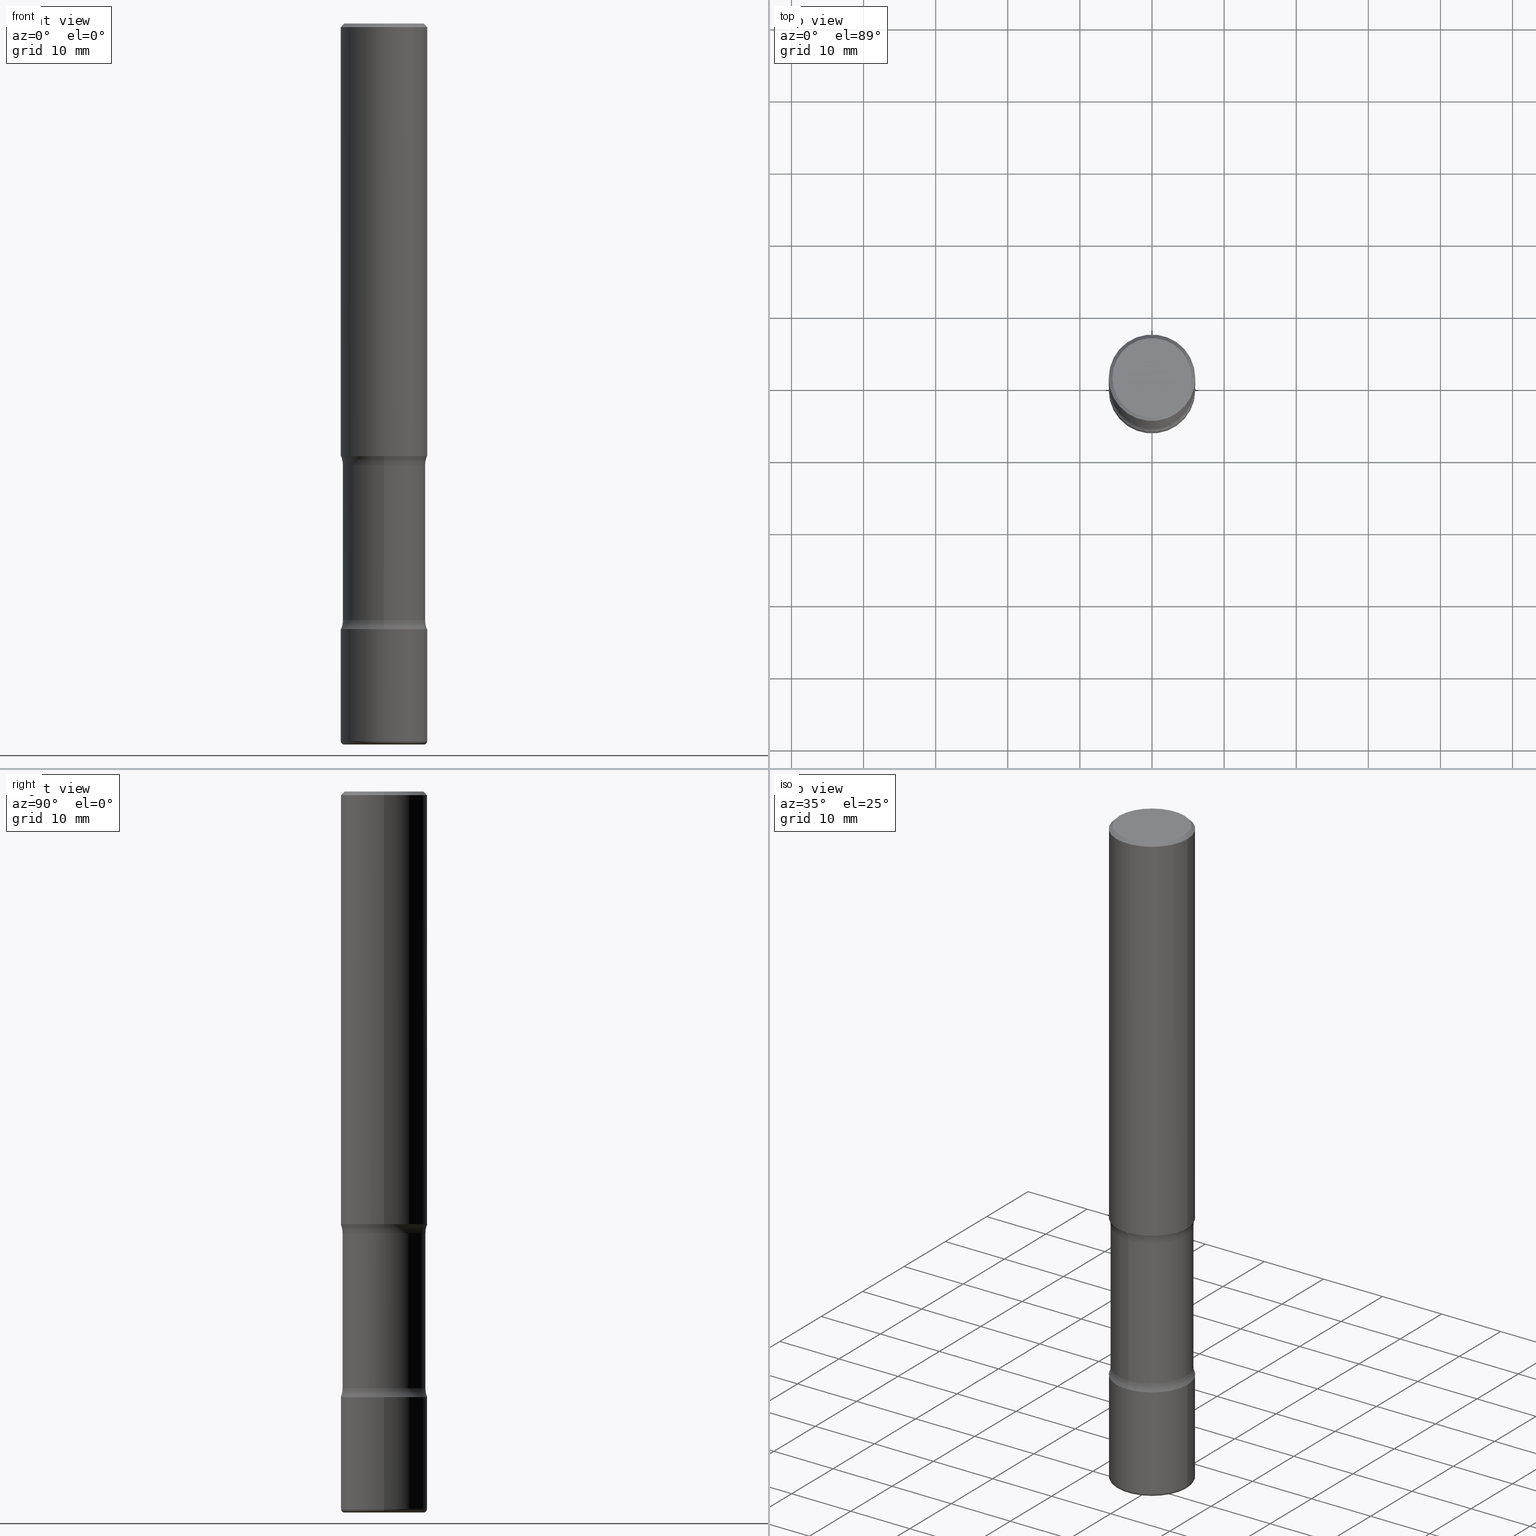
[diagram: canonical four-view strip — front | top / right | iso, engineering-drawing reading convention]
A machine part, canonical four-view strip (front | top / right | iso — engineering-drawing reading convention). The complete STEP part file that produces these views, byte-faithful:
ISO-10303-21;
HEADER;
FILE_DESCRIPTION (( 'STEP AP203' ),
    '1' );
FILE_NAME ('44781.STEP',
    '2024-03-02T03:12:13',
    ( '' ),
    ( '' ),
    'SwSTEP 2.0',
    'SolidWorks 2023',
    '' );
FILE_SCHEMA (( 'CONFIG_CONTROL_DESIGN' ));
ENDSEC;

DATA;
#1 = DIRECTION ( 'NONE',  ( 1.000000000000000000, -6.860497997771530774E-15, 4.843041298412109915E-29 ) ) ;
#2 = PERSON_AND_ORGANIZATION_ROLE ( 'creator' ) ;
#3 = CARTESIAN_POINT ( 'NONE',  ( 5.802532570468079339E-29, -8.557251244023685762E-15, -2.411772547846565917 ) ) ;
#4 = ORIENTED_EDGE ( 'NONE', *, *, #492, .F. ) ;
#5 = AXIS2_PLACEMENT_3D ( 'NONE', #450, #323, #62 ) ;
#6 = AXIS2_PLACEMENT_3D ( 'NONE', #130, #473, #86 ) ;
#7 = CARTESIAN_POINT ( 'NONE',  ( 8.087409888934865187E-29, -1.154667793568816723E-14, -3.307100000000000151 ) ) ;
#8 = CALENDAR_DATE ( 2024, 1, 3 ) ;
#9 = FACE_OUTER_BOUND ( 'NONE', #176, .T. ) ;
#10 = ORIENTED_EDGE ( 'NONE', *, *, #239, .T. ) ;
#11 = VERTEX_POINT ( 'NONE', #276 ) ;
#12 = DATE_AND_TIME ( #393, #21 ) ;
#13 = TOROIDAL_SURFACE ( 'NONE', #394, 0.3509500000000000397, 0.1250000000000000278 ) ;
#14 = DIRECTION ( 'NONE',  ( 1.000000000000000000, -6.982962677686266711E-15, 0.000000000000000000 ) ) ;
#15 = CIRCLE ( 'NONE', #419, 0.1250000000000000278 ) ;
#16 = DIRECTION ( 'NONE',  ( -1.000000000000000000, 6.982962677686265922E-15, -4.876176775795935793E-29 ) ) ;
#17 = EDGE_CURVE ( 'NONE', #286, #116, #375, .T. ) ;
#18 = CC_DESIGN_DATE_AND_TIME_ASSIGNMENT ( #49, #434, ( #352 ) ) ;
#19 = CARTESIAN_POINT ( 'NONE',  ( 9.579634954469036932E-29, -1.367717984865025539E-14, -3.917300000000000448 ) ) ;
#20 = AXIS2_PLACEMENT_3D ( 'NONE', #552, #294, #290 ) ;
#21 = LOCAL_TIME ( 22, 12, 13.00000000000000000, #168 ) ;
#22 = LINE ( 'NONE', #188, #184 ) ;
#23 = CARTESIAN_POINT ( 'NONE',  ( 1.577800417023309542E-15, 0.2259499999999864672, -3.937000000000000721 ) ) ;
#24 = CARTESIAN_POINT ( 'NONE',  ( -0.2362000000000001598, -2.480401480830709941E-15, -2.362200000000000077 ) ) ;
#25 = FACE_OUTER_BOUND ( 'NONE', #315, .T. ) ;
#26 = CARTESIAN_POINT ( 'NONE',  ( 7.959843264591818864E-29, -1.138267340980399904E-14, -3.257527452153434755 ) ) ;
#27 = DIRECTION ( 'NONE',  ( 1.000000000000000000, -6.982962677686266711E-15, 0.000000000000000000 ) ) ;
#28 = TOROIDAL_SURFACE ( 'NONE', #427, 0.2165000000000001645, 0.01969999999999987733 ) ;
#29 = ORIENTED_EDGE ( 'NONE', *, *, #500, .T. ) ;
#30 = PLANE ( 'NONE',  #325 ) ;
#31 = ORIENTED_EDGE ( 'NONE', *, *, #452, .F. ) ;
#32 = CARTESIAN_POINT ( 'NONE',  ( -0.2362000000000001598, 1.678301941865357775E-15, -1.161852468318209598E-29 ) ) ;
#33 = ORIENTED_EDGE ( 'NONE', *, *, #483, .T. ) ;
#34 = DIRECTION ( 'NONE',  ( -6.982962677686265133E-15, -1.000000000000000000, 0.000000000000000000 ) ) ;
#35 = EDGE_CURVE ( 'NONE', #413, #116, #279, .T. ) ;
#36 = VERTEX_POINT ( 'NONE', #24 ) ;
#37 = TOROIDAL_SURFACE ( 'NONE', #179, 0.3509500000000000952, 0.1250000000000000278 ) ;
#38 = LOCAL_TIME ( 22, 12, 13.00000000000000000, #525 ) ;
#39 = CARTESIAN_POINT ( 'NONE',  ( -0.2165000000000001645, -1.210325745744487227E-14, -3.937000000000000277 ) ) ;
#40 = ORIENTED_EDGE ( 'NONE', *, *, #470, .T. ) ;
#41 = CC_DESIGN_PERSON_AND_ORGANIZATION_ASSIGNMENT ( #306, #212, ( #432 ) ) ;
#42 = ORIENTED_EDGE ( 'NONE', *, *, #95, .F. ) ;
#43 = CALENDAR_DATE ( 2024, 1, 3 ) ;
#44 = DIRECTION ( 'NONE',  ( 2.573332013070723283E-29, -3.308373949061201717E-15, -1.000000000000000000 ) ) ;
#45 = ORIENTED_EDGE ( 'NONE', *, *, #442, .F. ) ;
#46 = AXIS2_PLACEMENT_3D ( 'NONE', #52, #44, #141 ) ;
#47 = APPROVAL_PERSON_ORGANIZATION ( #524, #319, #353 ) ;
#48 = ORIENTED_EDGE ( 'NONE', *, *, #444, .F. ) ;
#49 = DATE_AND_TIME ( #430, #69 ) ;
#50 = CARTESIAN_POINT ( 'NONE',  ( -0.2165000000000001645, -1.213885482572963751E-14, -3.917300000000000448 ) ) ;
#51 = ORIENTED_EDGE ( 'NONE', *, *, #533, .F. ) ;
#52 = CARTESIAN_POINT ( 'NONE',  ( 5.655868469784339415E-29, -8.420595391220237306E-15, -2.362200000000000077 ) ) ;
#53 = AXIS2_PLACEMENT_3D ( 'NONE', #232, #327, #99 ) ;
#54 = PLANE ( 'NONE',  #269 ) ;
#55 = LOCAL_TIME ( 22, 12, 13.00000000000000000, #531 ) ;
#56 = FACE_OUTER_BOUND ( 'NONE', #471, .T. ) ;
#57 = ADVANCED_FACE ( 'NONE', ( #59 ), #446, .F. ) ;
#58 = DIRECTION ( 'NONE',  ( 1.000000000000000000, -6.982962677686270655E-15, 4.883557194083114583E-29 ) ) ;
#59 = FACE_OUTER_BOUND ( 'NONE', #305, .T. ) ;
#60 = AXIS2_PLACEMENT_3D ( 'NONE', #50, #93, #391 ) ;
#61 = ADVANCED_FACE ( 'NONE', ( #401 ), #13, .F. ) ;
#62 = DIRECTION ( 'NONE',  ( -1.000000000000000000, 6.982962677686266711E-15, 0.000000000000000000 ) ) ;
#63 = CARTESIAN_POINT ( 'NONE',  ( -0.2161999999999998090, 1.544631344304200789E-15, 4.268512490089730842E-18 ) ) ;
#64 = DIRECTION ( 'NONE',  ( 1.000000000000000000, -6.982962677686266711E-15, 0.000000000000000000 ) ) ;
#65 = DESIGN_CONTEXT ( 'detailed design', #451, 'design' ) ;
#66 = AXIS2_PLACEMENT_3D ( 'NONE', #362, #448, #328 ) ;
#67 = CARTESIAN_POINT ( 'NONE',  ( 9.708351723968114409E-29, -1.363062268620181866E-14, -3.937000000000000277 ) ) ;
#68 = CIRCLE ( 'NONE', #46, 0.2362000000000003819 ) ;
#69 = LOCAL_TIME ( 22, 12, 13.00000000000000000, #310 ) ;
#70 = EDGE_LOOP ( 'NONE', ( #366, #10, #169, #227 ) ) ;
#71 = CARTESIAN_POINT ( 'NONE',  ( 2.450670751734054227E-15, 0.3509499999999916020, -2.411772547846566805 ) ) ;
#72 = PRODUCT_DEFINITION_SHAPE ( 'NONE', 'NONE',  #114 ) ;
#73 = ORIENTED_EDGE ( 'NONE', *, *, #158, .F. ) ;
#74 = ADVANCED_FACE ( 'NONE', ( #106 ), #491, .F. ) ;
#75 = DIRECTION ( 'NONE',  ( 2.573332013070722722E-29, -3.308373949061201717E-15, -1.000000000000000000 ) ) ;
#76 = DIRECTION ( 'NONE',  ( -2.445468806185136597E-29, 3.491481338843145583E-15, 1.000000000000000000 ) ) ;
#77 = EDGE_LOOP ( 'NONE', ( #410, #240, #150, #347 ) ) ;
#78 = CARTESIAN_POINT ( 'NONE',  ( -0.2362000000000002431, -1.093362695030385570E-14, -3.307100000000000151 ) ) ;
#79 = DIRECTION ( 'NONE',  ( 6.982962677686265133E-15, 1.000000000000000000, -2.313165108945182696E-15 ) ) ;
#80 = EDGE_LOOP ( 'NONE', ( #31, #259, #373, #333 ) ) ;
#81 = LINE ( 'NONE', #297, #88 ) ;
#82 = EDGE_CURVE ( 'NONE', #392, #512, #288, .T. ) ;
#83 = APPROVAL_STATUS ( 'not_yet_approved' ) ;
#84 = FACE_OUTER_BOUND ( 'NONE', #175, .T. ) ;
#85 = COORDINATED_UNIVERSAL_TIME_OFFSET ( 5, 0, .BEHIND. ) ;
#86 = DIRECTION ( 'NONE',  ( 6.982962677686265922E-15, 1.000000000000000000, -2.418099573944910042E-15 ) ) ;
#87 = AXIS2_PLACEMENT_3D ( 'NONE', #321, #490, #397 ) ;
#88 = VECTOR ( 'NONE', #251, 39.37007874015748143 ) ;
#89 = DIRECTION ( 'NONE',  ( 1.000000000000000000, -6.982962677686271444E-15, 0.000000000000000000 ) ) ;
#90 = ORIENTED_EDGE ( 'NONE', *, *, #142, .T. ) ;
#91 =( NAMED_UNIT ( * ) PLANE_ANGLE_UNIT ( ) SI_UNIT ( $, .RADIAN. ) );
#92 = CC_DESIGN_PERSON_AND_ORGANIZATION_ASSIGNMENT ( #424, #177, ( #263 ) ) ;
#93 = DIRECTION ( 'NONE',  ( 7.105427357601001859E-15, 1.000000000000000000, -3.491481338843145583E-15 ) ) ;
#94 = AXIS2_PLACEMENT_3D ( 'NONE', #26, #143, #117 ) ;
#95 = EDGE_CURVE ( 'NONE', #428, #413, #464, .T. ) ;
#96 = EDGE_LOOP ( 'NONE', ( #121, #163 ) ) ;
#97 = DIRECTION ( 'NONE',  ( 6.860497997771529985E-15, 1.000000000000000000, 0.000000000000000000 ) ) ;
#98 = ADVANCED_FACE ( 'NONE', ( #153 ), #229, .T. ) ;
#99 = DIRECTION ( 'NONE',  ( 6.982962677686265922E-15, 1.000000000000000000, -3.469747663417771480E-15 ) ) ;
#100 = DIRECTION ( 'NONE',  ( 6.982962677686265922E-15, 1.000000000000000000, -2.418099573944910042E-15 ) ) ;
#101 = CIRCLE ( 'NONE', #138, 0.2362000000000002153 ) ;
#102 = ORIENTED_EDGE ( 'NONE', *, *, #536, .T. ) ;
#103 = CALENDAR_DATE ( 2024, 1, 3 ) ;
#104 = MANIFOLD_SOLID_BREP ( 'Body-Move/Copy2[1]', #494 ) ;
#105 = CARTESIAN_POINT ( 'NONE',  ( 1.649375784469578172E-15, 0.2361999999999886135, -3.307100000000001039 ) ) ;
#106 = FACE_OUTER_BOUND ( 'NONE', #96, .T. ) ;
#107 = MANIFOLD_SOLID_BREP ( 'Body-Move/Copy2[4]', #526 ) ;
#108 = CYLINDRICAL_SURFACE ( 'NONE', #185, 0.2361999999999999933 ) ;
#109 = DIRECTION ( 'NONE',  ( 2.445468806185136597E-29, -3.491481338843145583E-15, -1.000000000000000000 ) ) ;
#110 = CARTESIAN_POINT ( 'NONE',  ( 1.577800417023291793E-15, 0.2259499999999886877, -3.257527452153435199 ) ) ;
#111 = ORIENTED_EDGE ( 'NONE', *, *, #462, .T. ) ;
#112 = DIRECTION ( 'NONE',  ( 1.000000000000000000, -6.982962677686266711E-15, 0.000000000000000000 ) ) ;
#113 = AXIS2_PLACEMENT_3D ( 'NONE', #67, #365, #100 ) ;
#114 = PRODUCT_DEFINITION ( 'UNKNOWN', '', #263, #65 ) ;
#115 = CIRCLE ( 'NONE', #496, 0.2161999999999998090 ) ;
#116 = VERTEX_POINT ( 'NONE', #284 ) ;
#117 = DIRECTION ( 'NONE',  ( 6.982962677686266711E-15, 1.000000000000000000, -2.418099573944910436E-15 ) ) ;
#118 = DIRECTION ( 'NONE',  ( 2.573332013070723283E-29, -3.308373949061201717E-15, -1.000000000000000000 ) ) ;
#119 = ORIENTED_EDGE ( 'NONE', *, *, #217, .F. ) ;
#120 = DIRECTION ( 'NONE',  ( -2.445468806185136597E-29, 3.491481338843145583E-15, 1.000000000000000000 ) ) ;
#121 = ORIENTED_EDGE ( 'NONE', *, *, #230, .T. ) ;
#122 = CARTESIAN_POINT ( 'NONE',  ( 0.2361999999999998545, -1.690279253850497785E-15, -0.02000000000000006981 ) ) ;
#123 = AXIS2_PLACEMENT_3D ( 'NONE', #282, #539, #236 ) ;
#124 = VERTEX_POINT ( 'NONE', #402 ) ;
#125 = CIRCLE ( 'NONE', #20, 0.2165000000000001645 ) ;
#126 =( NAMED_UNIT ( * ) SI_UNIT ( $, .STERADIAN. ) SOLID_ANGLE_UNIT ( ) );
#127 = CARTESIAN_POINT ( 'NONE',  ( -1.043851414335219820E-46, 1.490343170380447200E-32, 4.268512490100411279E-18 ) ) ;
#128 = ORIENTED_EDGE ( 'NONE', *, *, #82, .F. ) ;
#129 = DATE_TIME_ROLE ( 'creation_date' ) ;
#130 = CARTESIAN_POINT ( 'NONE',  ( 9.708351723968114409E-29, -1.363062268620181866E-14, -3.937000000000000277 ) ) ;
#131 = VERTEX_POINT ( 'NONE', #441 ) ;
#132 = PERSON_AND_ORGANIZATION_ROLE ( 'design_supplier' ) ;
#133 = PLANE ( 'NONE',  #386 ) ;
#134 = ORIENTED_EDGE ( 'NONE', *, *, #438, .T. ) ;
#135 = ADVANCED_FACE ( 'NONE', ( #25 ), #147, .T. ) ;
#136 = VECTOR ( 'NONE', #498, 39.37007874015748143 ) ;
#137 = DATE_AND_TIME ( #43, #38 ) ;
#138 = AXIS2_PLACEMENT_3D ( 'NONE', #449, #332, #167 ) ;
#139 = DIRECTION ( 'NONE',  ( 2.438088387897960049E-29, -3.491481338843145188E-15, -1.000000000000000000 ) ) ;
#140 = VERTEX_POINT ( 'NONE', #110 ) ;
#141 = DIRECTION ( 'NONE',  ( 6.982962677686265922E-15, 1.000000000000000000, -3.469747663417771480E-15 ) ) ;
#142 = EDGE_CURVE ( 'NONE', #420, #11, #317, .T. ) ;
#143 = DIRECTION ( 'NONE',  ( 2.573332013070723283E-29, -3.308373949061201717E-15, -1.000000000000000000 ) ) ;
#144 = CIRCLE ( 'NONE', #170, 0.2362000000000002153 ) ;
#145 = DIRECTION ( 'NONE',  ( -6.982962677686265133E-15, -1.000000000000000000, 0.000000000000000000 ) ) ;
#146 = CARTESIAN_POINT ( 'NONE',  ( 5.802532570468079339E-29, -8.557251244023685762E-15, -2.411772547846565917 ) ) ;
#147 = CYLINDRICAL_SURFACE ( 'NONE', #436, 0.2362000000000001598 ) ;
#148 = APPROVAL_ROLE ( '' ) ;
#149 = CARTESIAN_POINT ( 'NONE',  ( 0.2362000000000001598, -9.896953003084776152E-15, -2.362200000000000077 ) ) ;
#150 = ORIENTED_EDGE ( 'NONE', *, *, #174, .T. ) ;
#151 = AXIS2_PLACEMENT_3D ( 'NONE', #190, #155, #495 ) ;
#152 = AXIS2_PLACEMENT_3D ( 'NONE', #203, #120, #193 ) ;
#153 = FACE_OUTER_BOUND ( 'NONE', #80, .T. ) ;
#154 = LINE ( 'NONE', #32, #350 ) ;
#155 = DIRECTION ( 'NONE',  ( -2.445468806185136597E-29, 3.491481338843145583E-15, 1.000000000000000000 ) ) ;
#156 = VERTEX_POINT ( 'NONE', #63 ) ;
#157 = DIRECTION ( 'NONE',  ( -2.445468806185136597E-29, 3.491481338843145583E-15, 1.000000000000000000 ) ) ;
#158 = EDGE_CURVE ( 'NONE', #124, #11, #384, .T. ) ;
#159 = ORIENTED_EDGE ( 'NONE', *, *, #558, .T. ) ;
#160 = DIRECTION ( 'NONE',  ( -2.445468806185136597E-29, 3.491481338843145583E-15, 1.000000000000000000 ) ) ;
#161 = CARTESIAN_POINT ( 'NONE',  ( 8.087409888934865187E-29, -1.154667793568816723E-14, -3.307100000000000151 ) ) ;
#162 = AXIS2_PLACEMENT_3D ( 'NONE', #518, #421, #112 ) ;
#163 = ORIENTED_EDGE ( 'NONE', *, *, #492, .T. ) ;
#164 = LINE ( 'NONE', #338, #556 ) ;
#165 = ADVANCED_FACE ( 'NONE', ( #488 ), #195, .T. ) ;
#166 = VERTEX_POINT ( 'NONE', #244 ) ;
#167 = DIRECTION ( 'NONE',  ( 6.982962677686265133E-15, 1.000000000000000000, -2.313165108945182696E-15 ) ) ;
#168 = COORDINATED_UNIVERSAL_TIME_OFFSET ( 5, 0, .BEHIND. ) ;
#169 = ORIENTED_EDGE ( 'NONE', *, *, #158, .T. ) ;
#170 = AXIS2_PLACEMENT_3D ( 'NONE', #414, #241, #64 ) ;
#171 = CYLINDRICAL_SURFACE ( 'NONE', #6, 0.2259500000000000952 ) ;
#172 = APPROVAL_STATUS ( 'not_yet_approved' ) ;
#173 = CARTESIAN_POINT ( 'NONE',  ( 1.649375784469555295E-15, 0.2361999999999919719, -2.362200000000000966 ) ) ;
#174 = EDGE_CURVE ( 'NONE', #405, #140, #357, .T. ) ;
#175 = EDGE_LOOP ( 'NONE', ( #460, #513 ) ) ;
#176 = EDGE_LOOP ( 'NONE', ( #417, #379 ) ) ;
#177 = PERSON_AND_ORGANIZATION_ROLE ( 'creator' ) ;
#178 = ORIENTED_EDGE ( 'NONE', *, *, #281, .T. ) ;
#179 = AXIS2_PLACEMENT_3D ( 'NONE', #146, #186, #274 ) ;
#180 = DIRECTION ( 'NONE',  ( -1.000000000000000000, 6.982962677686265922E-15, -4.876176775795935793E-29 ) ) ;
#181 = EDGE_CURVE ( 'NONE', #433, #512, #22, .T. ) ;
#182 = DIRECTION ( 'NONE',  ( -2.445468806185136597E-29, 3.491481338843145583E-15, 1.000000000000000000 ) ) ;
#183 = DIRECTION ( 'NONE',  ( -1.000000000000000000, 6.982962677686265922E-15, -4.883557194083112901E-29 ) ) ;
#184 = VECTOR ( 'NONE', #537, 39.37007874015748143 ) ;
#185 = AXIS2_PLACEMENT_3D ( 'NONE', #458, #560, #370 ) ;
#186 = DIRECTION ( 'NONE',  ( 2.573332013070723283E-29, -3.308373949061201717E-15, -1.000000000000000000 ) ) ;
#187 = ADVANCED_FACE ( 'NONE', ( #521 ), #516, .F. ) ;
#188 = CARTESIAN_POINT ( 'NONE',  ( 0.2361999999999999933, -1.649375784469496131E-15, 1.151752954443000088E-29 ) ) ;
#189 = ADVANCED_FACE ( 'NONE', ( #437 ), #312, .T. ) ;
#190 = CARTESIAN_POINT ( 'NONE',  ( 4.890937612370289799E-31, -6.982962677686315028E-17, -0.02000000000000006981 ) ) ;
#191 = FACE_OUTER_BOUND ( 'NONE', #199, .T. ) ;
#192 = CARTESIAN_POINT ( 'NONE',  ( 0.000000000000000000, 0.000000000000000000, 0.000000000000000000 ) ) ;
#193 = DIRECTION ( 'NONE',  ( 1.000000000000000000, -6.982962677686266711E-15, 4.876176775795936353E-29 ) ) ;
#194 = CIRCLE ( 'NONE', #335, 0.2362000000000002153 ) ;
#195 = CYLINDRICAL_SURFACE ( 'NONE', #113, 0.2259500000000000952 ) ;
#196 = ORIENTED_EDGE ( 'NONE', *, *, #442, .T. ) ;
#197 = CC_DESIGN_DATE_AND_TIME_ASSIGNMENT ( #137, #129, ( #114 ) ) ;
#198 = DIRECTION ( 'NONE',  ( -2.445468806185136877E-29, 3.491481338843145188E-15, 1.000000000000000000 ) ) ;
#199 = EDGE_LOOP ( 'NONE', ( #119, #42, #40, #330 ) ) ;
#200 = DIRECTION ( 'NONE',  ( 6.982962677686265922E-15, 1.000000000000000000, -3.308373949061201717E-15 ) ) ;
#201 = DIRECTION ( 'NONE',  ( -1.000000000000000000, 6.982962677686266711E-15, 0.000000000000000000 ) ) ;
#202 = ORIENTED_EDGE ( 'NONE', *, *, #95, .T. ) ;
#203 = CARTESIAN_POINT ( 'NONE',  ( 0.000000000000000000, 0.000000000000000000, 0.000000000000000000 ) ) ;
#204 = CIRCLE ( 'NONE', #527, 0.2165000000000001645 ) ;
#205 = ORIENTED_EDGE ( 'NONE', *, *, #266, .T. ) ;
#206 = DIRECTION ( 'NONE',  ( 1.000000000000000000, -6.982962677686268288E-15, 0.000000000000000000 ) ) ;
#207 = ORIENTED_EDGE ( 'NONE', *, *, #174, .F. ) ;
#208 = MECHANICAL_CONTEXT ( 'NONE', #540, 'mechanical' ) ;
#209 = FACE_OUTER_BOUND ( 'NONE', #300, .T. ) ;
#210 = SECURITY_CLASSIFICATION_LEVEL ( 'unclassified' ) ;
#211 = AXIS2_PLACEMENT_3D ( 'NONE', #3, #510, #515 ) ;
#212 = PERSON_AND_ORGANIZATION_ROLE ( 'design_owner' ) ;
#213 = ORIENTED_EDGE ( 'NONE', *, *, #438, .F. ) ;
#214 = ORIENTED_EDGE ( 'NONE', *, *, #536, .F. ) ;
#215 = APPROVAL_DATE_TIME ( #482, #411 ) ;
#216 = DIRECTION ( 'NONE',  ( 1.000000000000000000, -6.982962677686266711E-15, 4.876217060660160159E-29 ) ) ;
#217 = EDGE_CURVE ( 'NONE', #413, #131, #477, .T. ) ;
#218 = ORIENTED_EDGE ( 'NONE', *, *, #452, .T. ) ;
#219 = PERSON_AND_ORGANIZATION ( #295, #508 ) ;
#220 = DIRECTION ( 'NONE',  ( 1.000000000000000000, -6.982962677686270655E-15, 4.883557194083114583E-29 ) ) ;
#221 = ADVANCED_FACE ( 'NONE', ( #209 ), #261, .F. ) ;
#222 = AXIS2_PLACEMENT_3D ( 'NONE', #339, #343, #79 ) ;
#223 = AXIS2_PLACEMENT_3D ( 'NONE', #388, #265, #267 ) ;
#224 = DIRECTION ( 'NONE',  ( 2.438088387897960049E-29, -3.491481338843145188E-15, -1.000000000000000000 ) ) ;
#225 = CARTESIAN_POINT ( 'NONE',  ( -0.2361999999999998545, 1.579546157692632044E-15, -0.02000000000000006981 ) ) ;
#226 = ADVANCED_FACE ( 'NONE', ( #549 ), #507, .F. ) ;
#227 = ORIENTED_EDGE ( 'NONE', *, *, #142, .F. ) ;
#228 = DIRECTION ( 'NONE',  ( -2.573332013070722722E-29, 3.308373949061201717E-15, 1.000000000000000000 ) ) ;
#229 = CONICAL_SURFACE ( 'NONE', #5, 0.2361999999999998545, 0.7853981633974479459 ) ;
#230 = EDGE_CURVE ( 'NONE', #405, #286, #314, .T. ) ;
#231 = CIRCLE ( 'NONE', #358, 0.2161999999999998090 ) ;
#232 = CARTESIAN_POINT ( 'NONE',  ( 5.655868469784339415E-29, -8.420595391220237306E-15, -2.362200000000000077 ) ) ;
#233 =( GEOMETRIC_REPRESENTATION_CONTEXT ( 3 ) GLOBAL_UNCERTAINTY_ASSIGNED_CONTEXT ( ( #435 ) ) GLOBAL_UNIT_ASSIGNED_CONTEXT ( ( #472, #91, #126 ) ) REPRESENTATION_CONTEXT ( 'NONE', 'WORKASPACE' ) );
#234 = CARTESIAN_POINT ( 'NONE',  ( 0.2165000000000001645, -1.518899126836933270E-14, -3.917300000000000448 ) ) ;
#235 = ADVANCED_BREP_SHAPE_REPRESENTATION ( '44781', ( #104, #497, #107, #223 ), #233 ) ;
#236 = DIRECTION ( 'NONE',  ( 6.982962677686265922E-15, 1.000000000000000000, -3.627149360917363879E-15 ) ) ;
#237 = DIRECTION ( 'NONE',  ( -2.445468806185136597E-29, 3.491481338843145583E-15, 1.000000000000000000 ) ) ;
#238 = DIRECTION ( 'NONE',  ( -6.982962677686266711E-15, -1.000000000000000000, 3.491481338843145583E-15 ) ) ;
#239 = EDGE_CURVE ( 'NONE', #247, #124, #125, .T. ) ;
#240 = ORIENTED_EDGE ( 'NONE', *, *, #230, .F. ) ;
#241 = DIRECTION ( 'NONE',  ( -2.445468806185136597E-29, 3.491481338843145583E-15, 1.000000000000000000 ) ) ;
#242 = AXIS2_PLACEMENT_3D ( 'NONE', #459, #76, #220 ) ;
#243 = CC_DESIGN_APPROVAL ( #252, ( #352 ) ) ;
#244 = CARTESIAN_POINT ( 'NONE',  ( 0.2161999999999998090, -1.586759460484350805E-15, 4.268512490111238857E-18 ) ) ;
#245 = EDGE_LOOP ( 'NONE', ( #454, #296 ) ) ;
#246 = DIRECTION ( 'NONE',  ( 1.000000000000000000, -6.982962677686266711E-15, 4.876176775795936353E-29 ) ) ;
#247 = VERTEX_POINT ( 'NONE', #39 ) ;
#248 = CARTESIAN_POINT ( 'NONE',  ( -1.043851414335219820E-46, 1.490343170380447200E-32, 4.268512490100411279E-18 ) ) ;
#249 = ADVANCED_FACE ( 'NONE', ( #408 ), #439, .T. ) ;
#250 = ORIENTED_EDGE ( 'NONE', *, *, #444, .T. ) ;
#251 = DIRECTION ( 'NONE',  ( -2.445468806185136877E-29, 3.491481338843145188E-15, 1.000000000000000000 ) ) ;
#252 = APPROVAL ( #277, 'UNSPECIFIED' ) ;
#253 = VECTOR ( 'NONE', #499, 39.37007874015748143 ) ;
#254 = EDGE_LOOP ( 'NONE', ( #381, #111, #331, #128 ) ) ;
#255 = ORIENTED_EDGE ( 'NONE', *, *, #324, .T. ) ;
#256 = DIRECTION ( 'NONE',  ( -2.445468806185136597E-29, 3.491481338843145583E-15, 1.000000000000000000 ) ) ;
#257 = APPROVAL_DATE_TIME ( #12, #319 ) ;
#258 = EDGE_CURVE ( 'NONE', #547, #313, #194, .T. ) ;
#259 = ORIENTED_EDGE ( 'NONE', *, *, #475, .F. ) ;
#260 = CARTESIAN_POINT ( 'NONE',  ( 9.627810689950883669E-29, -1.374596203102546341E-14, -3.937000000000000277 ) ) ;
#261 = TOROIDAL_SURFACE ( 'NONE', #211, 0.3509500000000000952, 0.1250000000000000278 ) ;
#262 = ORIENTED_EDGE ( 'NONE', *, *, #371, .T. ) ;
#263 = PRODUCT_DEFINITION_FORMATION_WITH_SPECIFIED_SOURCE ( 'ANY', '', #432, .NOT_KNOWN. ) ;
#264 = APPLICATION_PROTOCOL_DEFINITION ( 'international standard', 'config_control_design', 1994, #540 ) ;
#265 = DIRECTION ( 'NONE',  ( 0.000000000000000000, 0.000000000000000000, 1.000000000000000000 ) ) ;
#266 = EDGE_CURVE ( 'NONE', #131, #309, #68, .T. ) ;
#267 = DIRECTION ( 'NONE',  ( 1.000000000000000000, 0.000000000000000000, 0.000000000000000000 ) ) ;
#268 = CLOSED_SHELL ( 'NONE', ( #489, #189, #98, #187, #57, #523 ) ) ;
#269 = AXIS2_PLACEMENT_3D ( 'NONE', #260, #224, #180 ) ;
#270 = SHAPE_DEFINITION_REPRESENTATION ( #72, #235 ) ;
#271 = CARTESIAN_POINT ( 'NONE',  ( 1.577800417023270691E-15, 0.2259499999999915743, -2.411772547846566805 ) ) ;
#272 = DIRECTION ( 'NONE',  ( 6.982962677686265922E-15, 1.000000000000000000, -3.308373949061201717E-15 ) ) ;
#273 = ADVANCED_FACE ( 'NONE', ( #9 ), #54, .T. ) ;
#274 = DIRECTION ( 'NONE',  ( 6.982962677686265922E-15, 1.000000000000000000, -3.308373949061201717E-15 ) ) ;
#275 = ORIENTED_EDGE ( 'NONE', *, *, #181, .F. ) ;
#276 = CARTESIAN_POINT ( 'NONE',  ( 0.2362000000000001043, -1.532655563311975191E-14, -3.917300000000000448 ) ) ;
#277 = APPROVAL_STATUS ( 'not_yet_approved' ) ;
#278 = CIRCLE ( 'NONE', #60, 0.01969999999999989468 ) ;
#279 = LINE ( 'NONE', #322, #136 ) ;
#280 = DIRECTION ( 'NONE',  ( 2.573332013070723283E-29, -3.308373949061201717E-15, -1.000000000000000000 ) ) ;
#281 = EDGE_CURVE ( 'NONE', #166, #156, #231, .T. ) ;
#282 = CARTESIAN_POINT ( 'NONE',  ( 5.783435094127386859E-29, -8.584599917104405503E-15, -2.411772547846565917 ) ) ;
#283 = LINE ( 'NONE', #407, #455 ) ;
#284 = CARTESIAN_POINT ( 'NONE',  ( -1.585289574834976853E-15, -0.2259500000000114195, -3.257527452153434311 ) ) ;
#285 = EDGE_LOOP ( 'NONE', ( #463, #178 ) ) ;
#286 = VERTEX_POINT ( 'NONE', #469 ) ;
#287 = DIRECTION ( 'NONE',  ( 2.573332013070723283E-29, -3.308373949061201717E-15, -1.000000000000000000 ) ) ;
#288 = CIRCLE ( 'NONE', #151, 0.2361999999999998545 ) ;
#289 = AXIS2_PLACEMENT_3D ( 'NONE', #367, #157, #206 ) ;
#290 = DIRECTION ( 'NONE',  ( 1.000000000000000000, -6.982962677686271444E-15, 0.000000000000000000 ) ) ;
#291 = ADVANCED_FACE ( 'NONE', ( #84 ), #133, .F. ) ;
#292 = ORIENTED_EDGE ( 'NONE', *, *, #217, .T. ) ;
#293 = DIRECTION ( 'NONE',  ( -1.000000000000000000, 6.982962677686265922E-15, -4.883557194083112901E-29 ) ) ;
#294 = DIRECTION ( 'NONE',  ( -2.445468806185136597E-29, 3.491481338843145583E-15, 1.000000000000000000 ) ) ;
#295 = PERSON ( 'UNSPECIFIED', 'UNSPECIFIED', 'UNSPECIFIED', ('UNSPECIFIED'), ('UNSPECIFIED'), ('UNSPECIFIED') ) ;
#296 = ORIENTED_EDGE ( 'NONE', *, *, #266, .F. ) ;
#297 = CARTESIAN_POINT ( 'NONE',  ( 0.2362000000000001598, -1.649375784469497314E-15, 1.151752954443000929E-29 ) ) ;
#298 = ORIENTED_EDGE ( 'NONE', *, *, #17, .T. ) ;
#299 = CARTESIAN_POINT ( 'NONE',  ( 5.776686413970529753E-29, -8.247577218615279626E-15, -2.362200000000000077 ) ) ;
#300 = EDGE_LOOP ( 'NONE', ( #213, #292, #205, #337 ) ) ;
#301 = AXIS2_PLACEMENT_3D ( 'NONE', #546, #360, #443 ) ;
#302 = CARTESIAN_POINT ( 'NONE',  ( -2.407691772317861442E-15, -0.3509500000000086439, -2.411772547846564585 ) ) ;
#303 = VECTOR ( 'NONE', #538, 39.37007874015748143 ) ;
#304 = LOCAL_TIME ( 22, 12, 13.00000000000000000, #85 ) ;
#305 = EDGE_LOOP ( 'NONE', ( #214, #506 ) ) ;
#306 = PERSON_AND_ORGANIZATION ( #295, #508 ) ;
#307 = DIRECTION ( 'NONE',  ( -2.445468806185136597E-29, 3.491481338843145583E-15, 1.000000000000000000 ) ) ;
#308 = ADVANCED_FACE ( 'NONE', ( #354 ), #171, .T. ) ;
#309 = VERTEX_POINT ( 'NONE', #173 ) ;
#310 = COORDINATED_UNIVERSAL_TIME_OFFSET ( 5, 0, .BEHIND. ) ;
#311 = CARTESIAN_POINT ( 'NONE',  ( 0.2362000000000002153, -1.319605372015766534E-14, -3.307100000000000151 ) ) ;
#312 = CONICAL_SURFACE ( 'NONE', #363, 0.2361999999999998545, 0.7853981633974479459 ) ;
#313 = VERTEX_POINT ( 'NONE', #311 ) ;
#314 = CIRCLE ( 'NONE', #222, 0.2362000000000002153 ) ;
#315 = EDGE_LOOP ( 'NONE', ( #48, #90, #159, #480 ) ) ;
#316 = LENGTH_MEASURE_WITH_UNIT ( LENGTH_MEASURE( 0.02539999999999999897 ), #476 );
#317 = CIRCLE ( 'NONE', #66, 0.2362000000000001321 ) ;
#318 = CIRCLE ( 'NONE', #53, 0.2362000000000003819 ) ;
#319 = APPROVAL ( #172, 'UNSPECIFIED' ) ;
#320 = DIRECTION ( 'NONE',  ( 1.000000000000000000, -6.982962677686266711E-15, 4.876176775795936353E-29 ) ) ;
#321 = CARTESIAN_POINT ( 'NONE',  ( 9.579634954469036932E-29, -1.367717984865025539E-14, -3.917300000000000448 ) ) ;
#322 = CARTESIAN_POINT ( 'NONE',  ( -1.550129522596380948E-15, -0.2259500000000137232, -3.936999999999999389 ) ) ;
#323 = DIRECTION ( 'NONE',  ( 2.445468806185136597E-29, -3.491481338843145583E-15, -1.000000000000000000 ) ) ;
#324 = EDGE_CURVE ( 'NONE', #124, #247, #204, .T. ) ;
#325 = AXIS2_PLACEMENT_3D ( 'NONE', #299, #75, #200 ) ;
#326 = AXIS2_PLACEMENT_3D ( 'NONE', #445, #280, #403 ) ;
#327 = DIRECTION ( 'NONE',  ( 2.573332013070723283E-29, -3.308373949061201717E-15, -1.000000000000000000 ) ) ;
#328 = DIRECTION ( 'NONE',  ( 1.000000000000000000, -6.982962677686269077E-15, 0.000000000000000000 ) ) ;
#329 = CARTESIAN_POINT ( 'NONE',  ( -0.2361999999999999933, 1.678301941865356591E-15, -1.161852468318208757E-29 ) ) ;
#330 = ORIENTED_EDGE ( 'NONE', *, *, #389, .T. ) ;
#331 = ORIENTED_EDGE ( 'NONE', *, *, #181, .T. ) ;
#332 = DIRECTION ( 'NONE',  ( 2.573332013070723283E-29, -3.308373949061201717E-15, -1.000000000000000000 ) ) ;
#333 = ORIENTED_EDGE ( 'NONE', *, *, #82, .T. ) ;
#334 = CARTESIAN_POINT ( 'NONE',  ( 5.776686413970529753E-29, -8.247577218615279626E-15, -2.362200000000000077 ) ) ;
#335 = AXIS2_PLACEMENT_3D ( 'NONE', #161, #307, #14 ) ;
#336 = EDGE_CURVE ( 'NONE', #247, #420, #278, .T. ) ;
#337 = ORIENTED_EDGE ( 'NONE', *, *, #470, .F. ) ;
#338 = CARTESIAN_POINT ( 'NONE',  ( -0.2361999999999998545, 1.579546157692632044E-15, -0.02000000000000006981 ) ) ;
#339 = CARTESIAN_POINT ( 'NONE',  ( 8.087409888934865187E-29, -1.154667793568816723E-14, -3.307100000000000151 ) ) ;
#340 = EDGE_LOOP ( 'NONE', ( #348, #134, #342, #45 ) ) ;
#341 = FACE_OUTER_BOUND ( 'NONE', #517, .T. ) ;
#342 = ORIENTED_EDGE ( 'NONE', *, *, #431, .T. ) ;
#343 = DIRECTION ( 'NONE',  ( 2.573332013070723283E-29, -3.308373949061201717E-15, -1.000000000000000000 ) ) ;
#344 = APPROVAL_ROLE ( '' ) ;
#345 = CC_DESIGN_PERSON_AND_ORGANIZATION_ASSIGNMENT ( #349, #132, ( #263 ) ) ;
#346 = CIRCLE ( 'NONE', #94, 0.2259500000000000397 ) ;
#347 = ORIENTED_EDGE ( 'NONE', *, *, #533, .T. ) ;
#348 = ORIENTED_EDGE ( 'NONE', *, *, #35, .F. ) ;
#349 = PERSON_AND_ORGANIZATION ( #295, #508 ) ;
#350 = VECTOR ( 'NONE', #198, 39.37007874015748143 ) ;
#351 = EDGE_LOOP ( 'NONE', ( #4, #298, #196, #207 ) ) ;
#352 = SECURITY_CLASSIFICATION ( '', '', #210 ) ;
#353 = APPROVAL_ROLE ( '' ) ;
#354 = FACE_OUTER_BOUND ( 'NONE', #390, .T. ) ;
#355 = CC_DESIGN_PERSON_AND_ORGANIZATION_ASSIGNMENT ( #383, #425, ( #352 ) ) ;
#356 = CARTESIAN_POINT ( 'NONE',  ( -2.407691772317839748E-15, -0.3509500000000114750, -3.257527452153433867 ) ) ;
#357 = CIRCLE ( 'NONE', #426, 0.1250000000000000278 ) ;
#358 = AXIS2_PLACEMENT_3D ( 'NONE', #127, #182, #216 ) ;
#359 = DIRECTION ( 'NONE',  ( 1.000000000000000000, -6.860497997771530774E-15, 4.843041298412109915E-29 ) ) ;
#360 = DIRECTION ( 'NONE',  ( -2.438088387897960049E-29, 3.491481338843145188E-15, 1.000000000000000000 ) ) ;
#361 = ADVANCED_FACE ( 'NONE', ( #56 ), #28, .T. ) ;
#362 = CARTESIAN_POINT ( 'NONE',  ( 9.579634954469036932E-29, -1.367717984865025539E-14, -3.917300000000000448 ) ) ;
#363 = AXIS2_PLACEMENT_3D ( 'NONE', #422, #109, #201 ) ;
#364 = APPROVAL_PERSON_ORGANIZATION ( #522, #411, #344 ) ;
#365 = DIRECTION ( 'NONE',  ( 2.573332013070723283E-29, -3.308373949061201717E-15, -1.000000000000000000 ) ) ;
#366 = ORIENTED_EDGE ( 'NONE', *, *, #336, .F. ) ;
#367 = CARTESIAN_POINT ( 'NONE',  ( 5.776686413970529753E-29, -8.247577218615279626E-15, -2.362200000000000077 ) ) ;
#368 = ADVANCED_FACE ( 'NONE', ( #191 ), #37, .F. ) ;
#369 = ORIENTED_EDGE ( 'NONE', *, *, #500, .F. ) ;
#370 = DIRECTION ( 'NONE',  ( 1.000000000000000000, -6.982962677686266711E-15, 4.876176775795936353E-29 ) ) ;
#371 = EDGE_CURVE ( 'NONE', #11, #420, #519, .T. ) ;
#372 = CARTESIAN_POINT ( 'NONE',  ( 7.966181769532969380E-29, -1.137359630996297475E-14, -3.257527452153434755 ) ) ;
#373 = ORIENTED_EDGE ( 'NONE', *, *, #544, .T. ) ;
#374 = LINE ( 'NONE', #329, #253 ) ;
#375 = CIRCLE ( 'NONE', #485, 0.1250000000000000278 ) ;
#376 = AXIS2_PLACEMENT_3D ( 'NONE', #504, #256, #246 ) ;
#377 = EDGE_LOOP ( 'NONE', ( #262, #250, #416, #559 ) ) ;
#378 = DIRECTION ( 'NONE',  ( 0.7071067811865472397, -7.319954787623254468E-15, -0.7071067811865477948 ) ) ;
#379 = ORIENTED_EDGE ( 'NONE', *, *, #239, .F. ) ;
#380 = APPLICATION_PROTOCOL_DEFINITION ( 'international standard', 'config_control_design', 1994, #451 ) ;
#381 = ORIENTED_EDGE ( 'NONE', *, *, #483, .F. ) ;
#382 = ORIENTED_EDGE ( 'NONE', *, *, #371, .F. ) ;
#383 = PERSON_AND_ORGANIZATION ( #295, #508 ) ;
#384 = CIRCLE ( 'NONE', #553, 0.01969999999999989468 ) ;
#385 = DIRECTION ( 'NONE',  ( 2.438088387897960049E-29, -3.491481338843145188E-15, -1.000000000000000000 ) ) ;
#386 = AXIS2_PLACEMENT_3D ( 'NONE', #7, #385, #530 ) ;
#387 = CC_DESIGN_APPROVAL ( #319, ( #263 ) ) ;
#388 = CARTESIAN_POINT ( 'NONE',  ( 0.000000000000000000, 0.000000000000000000, 0.000000000000000000 ) ) ;
#389 = EDGE_CURVE ( 'NONE', #309, #131, #318, .T. ) ;
#390 = EDGE_LOOP ( 'NONE', ( #202, #550, #51, #503 ) ) ;
#391 = DIRECTION ( 'NONE',  ( -1.000000000000000000, 7.105427357600965571E-15, 0.000000000000000000 ) ) ;
#392 = VERTEX_POINT ( 'NONE', #225 ) ;
#393 = CALENDAR_DATE ( 2024, 1, 3 ) ;
#394 = AXIS2_PLACEMENT_3D ( 'NONE', #535, #541, #272 ) ;
#395 = CIRCLE ( 'NONE', #466, 0.2259500000000000397 ) ;
#396 = CC_DESIGN_PERSON_AND_ORGANIZATION_ASSIGNMENT ( #219, #2, ( #114 ) ) ;
#397 = DIRECTION ( 'NONE',  ( 1.000000000000000000, -6.982962677686269077E-15, 0.000000000000000000 ) ) ;
#398 = DIRECTION ( 'NONE',  ( -6.982962677686265922E-15, -1.000000000000000000, 3.308373949061201717E-15 ) ) ;
#399 = CARTESIAN_POINT ( 'NONE',  ( -0.2362000000000001043, -1.199887790678489899E-14, -3.917300000000000448 ) ) ;
#400 = PRODUCT_RELATED_PRODUCT_CATEGORY ( 'detail', '', ( #432 ) ) ;
#401 = FACE_OUTER_BOUND ( 'NONE', #351, .T. ) ;
#402 = CARTESIAN_POINT ( 'NONE',  ( 0.2165000000000001645, -1.525777345074454388E-14, -3.937000000000000277 ) ) ;
#403 = DIRECTION ( 'NONE',  ( 6.982962677686265922E-15, 1.000000000000000000, -3.627149360917363879E-15 ) ) ;
#404 = CARTESIAN_POINT ( 'NONE',  ( 8.087409888934865187E-29, -1.154667793568816723E-14, -3.307100000000000151 ) ) ;
#405 = VERTEX_POINT ( 'NONE', #105 ) ;
#406 = AXIS2_PLACEMENT_3D ( 'NONE', #302, #1, #468 ) ;
#407 = CARTESIAN_POINT ( 'NONE',  ( 0.2361999999999998545, -1.690279253850497785E-15, -0.02000000000000006981 ) ) ;
#408 = FACE_OUTER_BOUND ( 'NONE', #70, .T. ) ;
#409 = CARTESIAN_POINT ( 'NONE',  ( 2.450670751734075132E-15, 0.3509499999999886599, -3.257527452153435643 ) ) ;
#410 = ORIENTED_EDGE ( 'NONE', *, *, #17, .F. ) ;
#411 = APPROVAL ( #83, 'UNSPECIFIED' ) ;
#412 = CARTESIAN_POINT ( 'NONE',  ( 7.959843264591818864E-29, -1.138267340980399904E-14, -3.257527452153434755 ) ) ;
#413 = VERTEX_POINT ( 'NONE', #532 ) ;
#414 = CARTESIAN_POINT ( 'NONE',  ( 8.087409888934865187E-29, -1.154667793568816723E-14, -3.307100000000000151 ) ) ;
#415 = DIRECTION ( 'NONE',  ( 6.982962677686265922E-15, 1.000000000000000000, -3.308373949061201717E-15 ) ) ;
#416 = ORIENTED_EDGE ( 'NONE', *, *, #447, .F. ) ;
#417 = ORIENTED_EDGE ( 'NONE', *, *, #324, .F. ) ;
#418 = FACE_OUTER_BOUND ( 'NONE', #245, .T. ) ;
#419 = AXIS2_PLACEMENT_3D ( 'NONE', #71, #293, #34 ) ;
#420 = VERTEX_POINT ( 'NONE', #399 ) ;
#421 = DIRECTION ( 'NONE',  ( -2.445468806185136597E-29, 3.491481338843145583E-15, 1.000000000000000000 ) ) ;
#422 = CARTESIAN_POINT ( 'NONE',  ( 4.890937612370289799E-31, -6.982962677686315028E-17, -0.02000000000000006981 ) ) ;
#423 = ORIENTED_EDGE ( 'NONE', *, *, #336, .T. ) ;
#424 = PERSON_AND_ORGANIZATION ( #295, #508 ) ;
#425 = PERSON_AND_ORGANIZATION_ROLE ( 'classification_officer' ) ;
#426 = AXIS2_PLACEMENT_3D ( 'NONE', #409, #183, #145 ) ;
#427 = AXIS2_PLACEMENT_3D ( 'NONE', #19, #237, #58 ) ;
#428 = VERTEX_POINT ( 'NONE', #271 ) ;
#429 = ORIENTED_EDGE ( 'NONE', *, *, #544, .F. ) ;
#430 = CALENDAR_DATE ( 2024, 1, 3 ) ;
#431 = EDGE_CURVE ( 'NONE', #428, #140, #440, .T. ) ;
#432 = PRODUCT ( '44781', '44781', '', ( #208 ) ) ;
#433 = VERTEX_POINT ( 'NONE', #149 ) ;
#434 = DATE_TIME_ROLE ( 'classification_date' ) ;
#435 = UNCERTAINTY_MEASURE_WITH_UNIT (LENGTH_MEASURE( 1.000000000000000082E-05 ), #472, 'distance_accuracy_value', 'NONE');
#436 = AXIS2_PLACEMENT_3D ( 'NONE', #192, #502, #320 ) ;
#437 = FACE_OUTER_BOUND ( 'NONE', #554, .T. ) ;
#438 = EDGE_CURVE ( 'NONE', #413, #428, #555, .T. ) ;
#439 = TOROIDAL_SURFACE ( 'NONE', #242, 0.2165000000000001645, 0.01969999999999987733 ) ;
#440 = LINE ( 'NONE', #23, #303 ) ;
#441 = CARTESIAN_POINT ( 'NONE',  ( -1.620449627073581633E-15, -0.2362000000000087641, -2.362199999999999189 ) ) ;
#442 = EDGE_CURVE ( 'NONE', #116, #140, #346, .T. ) ;
#443 = DIRECTION ( 'NONE',  ( 1.000000000000000000, -6.982962677686265922E-15, 4.876176775795935793E-29 ) ) ;
#444 = EDGE_CURVE ( 'NONE', #420, #547, #154, .T. ) ;
#445 = CARTESIAN_POINT ( 'NONE',  ( 5.783435094127386859E-29, -8.584599917104405503E-15, -2.411772547846565917 ) ) ;
#446 = PLANE ( 'NONE',  #301 ) ;
#447 = EDGE_CURVE ( 'NONE', #313, #547, #144, .T. ) ;
#448 = DIRECTION ( 'NONE',  ( -2.445468806185136597E-29, 3.491481338843145583E-15, 1.000000000000000000 ) ) ;
#449 = CARTESIAN_POINT ( 'NONE',  ( 8.087409888934865187E-29, -1.154667793568816723E-14, -3.307100000000000151 ) ) ;
#450 = CARTESIAN_POINT ( 'NONE',  ( 4.890937612370289799E-31, -6.982962677686315028E-17, -0.02000000000000006981 ) ) ;
#451 = APPLICATION_CONTEXT ( 'configuration controlled 3d designs of mechanical parts and assemblies' ) ;
#452 = EDGE_CURVE ( 'NONE', #166, #512, #283, .T. ) ;
#453 = AXIS2_PLACEMENT_3D ( 'NONE', #404, #228, #398 ) ;
#454 = ORIENTED_EDGE ( 'NONE', *, *, #389, .F. ) ;
#455 = VECTOR ( 'NONE', #378, 39.37007874015748143 ) ;
#456 = FACE_OUTER_BOUND ( 'NONE', #254, .T. ) ;
#457 = ORIENTED_EDGE ( 'NONE', *, *, #281, .F. ) ;
#458 = CARTESIAN_POINT ( 'NONE',  ( 0.000000000000000000, 0.000000000000000000, 0.000000000000000000 ) ) ;
#459 = CARTESIAN_POINT ( 'NONE',  ( 9.579634954469036932E-29, -1.367717984865025539E-14, -3.917300000000000448 ) ) ;
#460 = ORIENTED_EDGE ( 'NONE', *, *, #447, .T. ) ;
#461 = DIRECTION ( 'NONE',  ( 1.000000000000000000, -6.982962677686268288E-15, 0.000000000000000000 ) ) ;
#462 = EDGE_CURVE ( 'NONE', #36, #433, #534, .T. ) ;
#463 = ORIENTED_EDGE ( 'NONE', *, *, #475, .T. ) ;
#464 = CIRCLE ( 'NONE', #123, 0.2259500000000001507 ) ;
#465 = CYLINDRICAL_SURFACE ( 'NONE', #152, 0.2361999999999999933 ) ;
#466 = AXIS2_PLACEMENT_3D ( 'NONE', #412, #287, #551 ) ;
#467 = AXIS2_PLACEMENT_3D ( 'NONE', #334, #557, #461 ) ;
#468 = DIRECTION ( 'NONE',  ( 6.860497997771532351E-15, 1.000000000000000000, 0.000000000000000000 ) ) ;
#469 = CARTESIAN_POINT ( 'NONE',  ( -1.620449627073556192E-15, -0.2362000000000117339, -3.307099999999999707 ) ) ;
#470 = EDGE_CURVE ( 'NONE', #428, #309, #15, .T. ) ;
#471 = EDGE_LOOP ( 'NONE', ( #255, #423, #382, #73 ) ) ;
#472 =( CONVERSION_BASED_UNIT ( 'INCH', #316 ) LENGTH_UNIT ( ) NAMED_UNIT ( #501 ) );
#473 = DIRECTION ( 'NONE',  ( 2.573332013070723283E-29, -3.308373949061201717E-15, -1.000000000000000000 ) ) ;
#474 = CARTESIAN_POINT ( 'NONE',  ( 1.509716530915769337E-15, 0.2161999999999998090, -7.527240092128372163E-16 ) ) ;
#475 = EDGE_CURVE ( 'NONE', #156, #166, #115, .T. ) ;
#476 =( LENGTH_UNIT ( ) NAMED_UNIT ( * ) SI_UNIT ( $, .METRE. ) );
#477 = CIRCLE ( 'NONE', #406, 0.1250000000000000278 ) ;
#478 = CARTESIAN_POINT ( 'NONE',  ( 9.627810689950883669E-29, -1.374596203102546341E-14, -3.937000000000000277 ) ) ;
#479 = CIRCLE ( 'NONE', #162, 0.2361999999999998545 ) ;
#480 = ORIENTED_EDGE ( 'NONE', *, *, #258, .F. ) ;
#481 = DIRECTION ( 'NONE',  ( -2.445468806185136597E-29, 3.491481338843145583E-15, 1.000000000000000000 ) ) ;
#482 = DATE_AND_TIME ( #8, #304 ) ;
#483 = EDGE_CURVE ( 'NONE', #36, #392, #374, .T. ) ;
#484 = APPROVAL_DATE_TIME ( #493, #252 ) ;
#485 = AXIS2_PLACEMENT_3D ( 'NONE', #356, #359, #97 ) ;
#486 = AXIS2_PLACEMENT_3D ( 'NONE', #372, #118, #415 ) ;
#487 = APPROVAL_PERSON_ORGANIZATION ( #529, #252, #148 ) ;
#488 = FACE_OUTER_BOUND ( 'NONE', #340, .T. ) ;
#489 = ADVANCED_FACE ( 'NONE', ( #341 ), #108, .T. ) ;
#490 = DIRECTION ( 'NONE',  ( -2.445468806185136597E-29, 3.491481338843145583E-15, 1.000000000000000000 ) ) ;
#491 = PLANE ( 'NONE',  #453 ) ;
#492 = EDGE_CURVE ( 'NONE', #286, #405, #101, .T. ) ;
#493 = DATE_AND_TIME ( #103, #55 ) ;
#494 = CLOSED_SHELL ( 'NONE', ( #511, #361, #273, #249, #135, #291 ) ) ;
#495 = DIRECTION ( 'NONE',  ( 1.000000000000000000, -6.982962677686266711E-15, 0.000000000000000000 ) ) ;
#496 = AXIS2_PLACEMENT_3D ( 'NONE', #248, #160, #545 ) ;
#497 = MANIFOLD_SOLID_BREP ( 'Body-Move/Copy2[2]', #268 ) ;
#498 = DIRECTION ( 'NONE',  ( 2.573332013070723283E-29, -3.308373949061201717E-15, -1.000000000000000000 ) ) ;
#499 = DIRECTION ( 'NONE',  ( -2.445468806185136877E-29, 3.491481338843145188E-15, 1.000000000000000000 ) ) ;
#500 = EDGE_CURVE ( 'NONE', #512, #392, #479, .T. ) ;
#501 = DIMENSIONAL_EXPONENTS ( 1.000000000000000000, 0.000000000000000000, 0.000000000000000000, 0.000000000000000000, 0.000000000000000000, 0.000000000000000000, 0.000000000000000000 ) ;
#502 = DIRECTION ( 'NONE',  ( -2.445468806185136597E-29, 3.491481338843145583E-15, 1.000000000000000000 ) ) ;
#503 = ORIENTED_EDGE ( 'NONE', *, *, #431, .F. ) ;
#504 = CARTESIAN_POINT ( 'NONE',  ( 0.000000000000000000, 0.000000000000000000, 0.000000000000000000 ) ) ;
#505 = AXIS2_PLACEMENT_3D ( 'NONE', #474, #139, #16 ) ;
#506 = ORIENTED_EDGE ( 'NONE', *, *, #462, .F. ) ;
#507 = TOROIDAL_SURFACE ( 'NONE', #486, 0.3509500000000000397, 0.1250000000000000278 ) ;
#508 = ORGANIZATION ( 'UNSPECIFIED', 'UNSPECIFIED', '' ) ;
#509 = FACE_OUTER_BOUND ( 'NONE', #377, .T. ) ;
#510 = DIRECTION ( 'NONE',  ( 2.573332013070723283E-29, -3.308373949061201717E-15, -1.000000000000000000 ) ) ;
#511 = ADVANCED_FACE ( 'NONE', ( #509 ), #548, .T. ) ;
#512 = VERTEX_POINT ( 'NONE', #122 ) ;
#513 = ORIENTED_EDGE ( 'NONE', *, *, #258, .T. ) ;
#514 = DIRECTION ( 'NONE',  ( -0.7071067811865472397, 2.468850131082253905E-15, -0.7071067811865477948 ) ) ;
#515 = DIRECTION ( 'NONE',  ( 6.982962677686265922E-15, 1.000000000000000000, -3.308373949061201717E-15 ) ) ;
#516 = PLANE ( 'NONE',  #505 ) ;
#517 = EDGE_LOOP ( 'NONE', ( #102, #33, #369, #275 ) ) ;
#518 = CARTESIAN_POINT ( 'NONE',  ( 4.890937612370289799E-31, -6.982962677686315028E-17, -0.02000000000000006981 ) ) ;
#519 = CIRCLE ( 'NONE', #87, 0.2362000000000001321 ) ;
#520 = ADVANCED_FACE ( 'NONE', ( #418 ), #30, .F. ) ;
#521 = FACE_OUTER_BOUND ( 'NONE', #285, .T. ) ;
#522 = PERSON_AND_ORGANIZATION ( #295, #508 ) ;
#523 = ADVANCED_FACE ( 'NONE', ( #456 ), #465, .T. ) ;
#524 = PERSON_AND_ORGANIZATION ( #295, #508 ) ;
#525 = COORDINATED_UNIVERSAL_TIME_OFFSET ( 5, 0, .BEHIND. ) ;
#526 = CLOSED_SHELL ( 'NONE', ( #308, #61, #221, #368, #520, #74, #226, #165 ) ) ;
#527 = AXIS2_PLACEMENT_3D ( 'NONE', #478, #481, #89 ) ;
#528 = CC_DESIGN_SECURITY_CLASSIFICATION ( #352, ( #263 ) ) ;
#529 = PERSON_AND_ORGANIZATION ( #295, #508 ) ;
#530 = DIRECTION ( 'NONE',  ( -1.000000000000000000, 6.982962677686265922E-15, -4.876176775795935793E-29 ) ) ;
#531 = COORDINATED_UNIVERSAL_TIME_OFFSET ( 5, 0, .BEHIND. ) ;
#532 = CARTESIAN_POINT ( 'NONE',  ( -1.585289574835001111E-15, -0.2259500000000087272, -2.411772547846565029 ) ) ;
#533 = EDGE_CURVE ( 'NONE', #140, #116, #395, .T. ) ;
#534 = CIRCLE ( 'NONE', #289, 0.2362000000000001598 ) ;
#535 = CARTESIAN_POINT ( 'NONE',  ( 7.966181769532969380E-29, -1.137359630996297475E-14, -3.257527452153434755 ) ) ;
#536 = EDGE_CURVE ( 'NONE', #433, #36, #542, .T. ) ;
#537 = DIRECTION ( 'NONE',  ( -2.445468806185136877E-29, 3.491481338843145188E-15, 1.000000000000000000 ) ) ;
#538 = DIRECTION ( 'NONE',  ( 2.573332013070723283E-29, -3.308373949061201717E-15, -1.000000000000000000 ) ) ;
#539 = DIRECTION ( 'NONE',  ( 2.573332013070723283E-29, -3.308373949061201717E-15, -1.000000000000000000 ) ) ;
#540 = APPLICATION_CONTEXT ( 'configuration controlled 3d designs of mechanical parts and assemblies' ) ;
#541 = DIRECTION ( 'NONE',  ( 2.573332013070723283E-29, -3.308373949061201717E-15, -1.000000000000000000 ) ) ;
#542 = CIRCLE ( 'NONE', #467, 0.2362000000000001598 ) ;
#543 = CC_DESIGN_APPROVAL ( #411, ( #114 ) ) ;
#544 = EDGE_CURVE ( 'NONE', #156, #392, #164, .T. ) ;
#545 = DIRECTION ( 'NONE',  ( 1.000000000000000000, -6.982962677686266711E-15, 4.876217060660160159E-29 ) ) ;
#546 = CARTESIAN_POINT ( 'NONE',  ( 5.776686413970529753E-29, -8.247577218615279626E-15, -2.362200000000000077 ) ) ;
#547 = VERTEX_POINT ( 'NONE', #78 ) ;
#548 = CYLINDRICAL_SURFACE ( 'NONE', #376, 0.2362000000000001598 ) ;
#549 = FACE_OUTER_BOUND ( 'NONE', #77, .T. ) ;
#550 = ORIENTED_EDGE ( 'NONE', *, *, #35, .T. ) ;
#551 = DIRECTION ( 'NONE',  ( 6.982962677686266711E-15, 1.000000000000000000, -2.418099573944910436E-15 ) ) ;
#552 = CARTESIAN_POINT ( 'NONE',  ( 9.627810689950883669E-29, -1.374596203102546341E-14, -3.937000000000000277 ) ) ;
#553 = AXIS2_PLACEMENT_3D ( 'NONE', #234, #238, #27 ) ;
#554 = EDGE_LOOP ( 'NONE', ( #457, #218, #29, #429 ) ) ;
#555 = CIRCLE ( 'NONE', #326, 0.2259500000000001507 ) ;
#556 = VECTOR ( 'NONE', #514, 39.37007874015748143 ) ;
#557 = DIRECTION ( 'NONE',  ( -2.445468806185136597E-29, 3.491481338843145583E-15, 1.000000000000000000 ) ) ;
#558 = EDGE_CURVE ( 'NONE', #11, #313, #81, .T. ) ;
#559 = ORIENTED_EDGE ( 'NONE', *, *, #558, .F. ) ;
#560 = DIRECTION ( 'NONE',  ( -2.445468806185136597E-29, 3.491481338843145583E-15, 1.000000000000000000 ) ) ;
ENDSEC;
END-ISO-10303-21;
